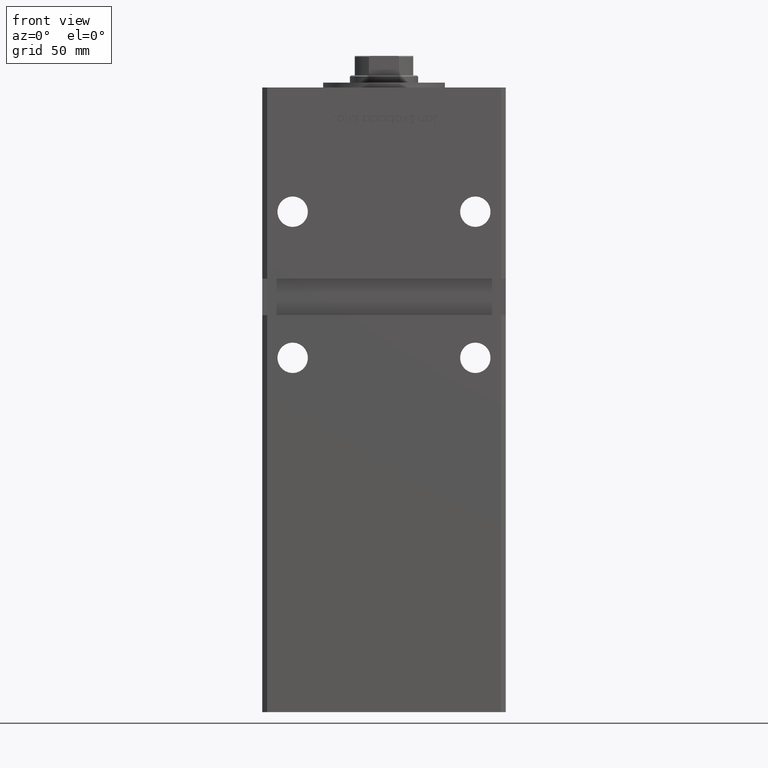
[diagram: clean part render]
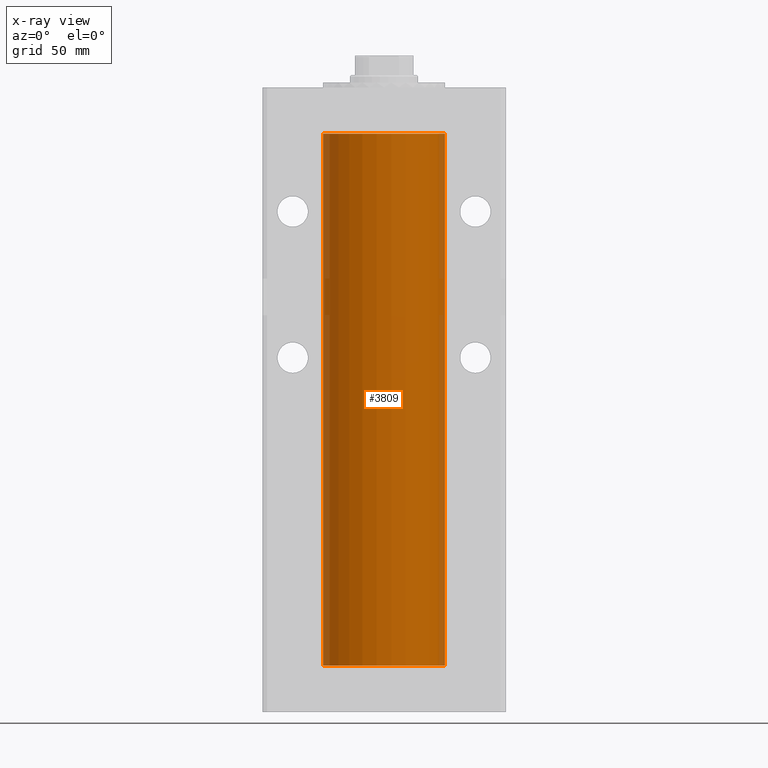
[diagram: x-ray — body ghosted, one internal face saturated and labeled with its STEP entity id]
A machine part, front view, then the same camera in x-ray: the body is ghosted and one INTERNAL B-rep face — a face not visible from any outside direction — is saturated and labeled: STEP entity #3809.
In plain terms, the highlighted cylindrical surface (partial cylindrical patch) has radius 25 mm, axis along (-0, -0, -1).
Its self-contained STEP definition (entity closure, byte-faithful):
#943 = CARTESIAN_POINT ( 'NONE',  ( 0.000000000000000000, 0.000000000000000000, 0.000000000000000000 ) ) ;
#2176 = EDGE_CURVE ( 'NONE', #26225, #21072, #19878, .T. ) ;
#3809 = ADVANCED_FACE ( 'NONE', ( #28381 ), #8696, .F. ) ;
#4068 = AXIS2_PLACEMENT_3D ( 'NONE', #9047, #28994, #48940 ) ;
#4931 = DIRECTION ( 'NONE',  ( -0.000000000000000000, -0.000000000000000000, -1.000000000000000000 ) ) ;
#5549 = CARTESIAN_POINT ( 'NONE',  ( -25.00000000000000000, 0.000000000000000000, 218.5000000000000000 ) ) ;
#5702 = DIRECTION ( 'NONE',  ( -0.000000000000000000, -0.000000000000000000, -1.000000000000000000 ) ) ;
#5928 = AXIS2_PLACEMENT_3D ( 'NONE', #943, #38581, #46150 ) ;
#6709 = DIRECTION ( 'NONE',  ( -0.000000000000000000, -0.000000000000000000, -1.000000000000000000 ) ) ;
#8696 = CYLINDRICAL_SURFACE ( 'NONE', #20475, 25.00000000000000000 ) ;
#9047 = CARTESIAN_POINT ( 'NONE',  ( 0.000000000000000000, 0.000000000000000000, 218.5000000000000000 ) ) ;
#11457 = EDGE_CURVE ( 'NONE', #38471, #31239, #18053, .T. ) ;
#12105 = VECTOR ( 'NONE', #5702, 1000.000000000000000 ) ;
#16082 = CARTESIAN_POINT ( 'NONE',  ( -25.00000000000000000, 0.000000000000000000, 218.5000000000000000 ) ) ;
#18053 = LINE ( 'NONE', #22377, #12105 ) ;
#19878 = LINE ( 'NONE', #16082, #21282 ) ;
#20281 = DIRECTION ( 'NONE',  ( -1.000000000000000000, 0.000000000000000000, 0.000000000000000000 ) ) ;
#20475 = AXIS2_PLACEMENT_3D ( 'NONE', #32679, #4931, #20281 ) ;
#21072 = VERTEX_POINT ( 'NONE', #32084 ) ;
#21282 = VECTOR ( 'NONE', #6709, 1000.000000000000000 ) ;
#21300 = CARTESIAN_POINT ( 'NONE',  ( 25.00000000000000000, 3.061616997868383043E-15, 0.000000000000000000 ) ) ;
#22377 = CARTESIAN_POINT ( 'NONE',  ( 25.00000000000000000, 3.061616997868383043E-15, 218.5000000000000000 ) ) ;
#22905 = ORIENTED_EDGE ( 'NONE', *, *, #11457, .T. ) ;
#23128 = CARTESIAN_POINT ( 'NONE',  ( 25.00000000000000000, 3.061616997868383043E-15, 218.5000000000000000 ) ) ;
#24862 = ORIENTED_EDGE ( 'NONE', *, *, #46487, .T. ) ;
#26225 = VERTEX_POINT ( 'NONE', #5549 ) ;
#28381 = FACE_OUTER_BOUND ( 'NONE', #50271, .T. ) ;
#28994 = DIRECTION ( 'NONE',  ( -0.000000000000000000, 0.000000000000000000, 1.000000000000000000 ) ) ;
#31239 = VERTEX_POINT ( 'NONE', #21300 ) ;
#31367 = ORIENTED_EDGE ( 'NONE', *, *, #52208, .F. ) ;
#32084 = CARTESIAN_POINT ( 'NONE',  ( -25.00000000000000000, 0.000000000000000000, 0.000000000000000000 ) ) ;
#32679 = CARTESIAN_POINT ( 'NONE',  ( 0.000000000000000000, 0.000000000000000000, 218.5000000000000000 ) ) ;
#38471 = VERTEX_POINT ( 'NONE', #23128 ) ;
#38581 = DIRECTION ( 'NONE',  ( -0.000000000000000000, 0.000000000000000000, 1.000000000000000000 ) ) ;
#38583 = CIRCLE ( 'NONE', #5928, 25.00000000000000000 ) ;
#46150 = DIRECTION ( 'NONE',  ( 1.000000000000000000, 0.000000000000000000, 0.000000000000000000 ) ) ;
#46487 = EDGE_CURVE ( 'NONE', #26225, #38471, #52230, .T. ) ;
#48940 = DIRECTION ( 'NONE',  ( 1.000000000000000000, 0.000000000000000000, 0.000000000000000000 ) ) ;
#50271 = EDGE_LOOP ( 'NONE', ( #24862, #22905, #31367, #52570 ) ) ;
#52208 = EDGE_CURVE ( 'NONE', #21072, #31239, #38583, .T. ) ;
#52230 = CIRCLE ( 'NONE', #4068, 25.00000000000000000 ) ;
#52570 = ORIENTED_EDGE ( 'NONE', *, *, #2176, .F. ) ;